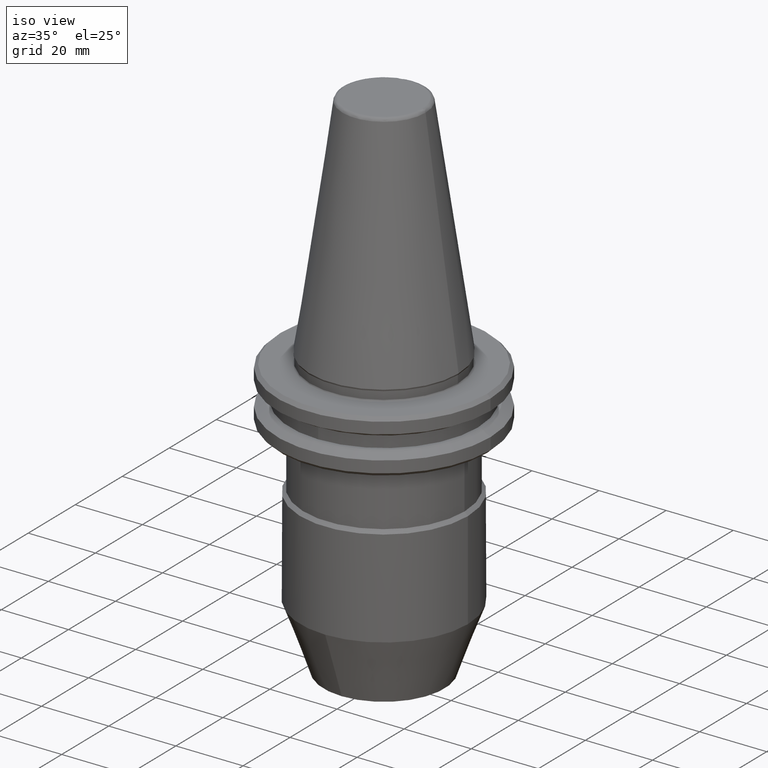
[diagram: clean part render]
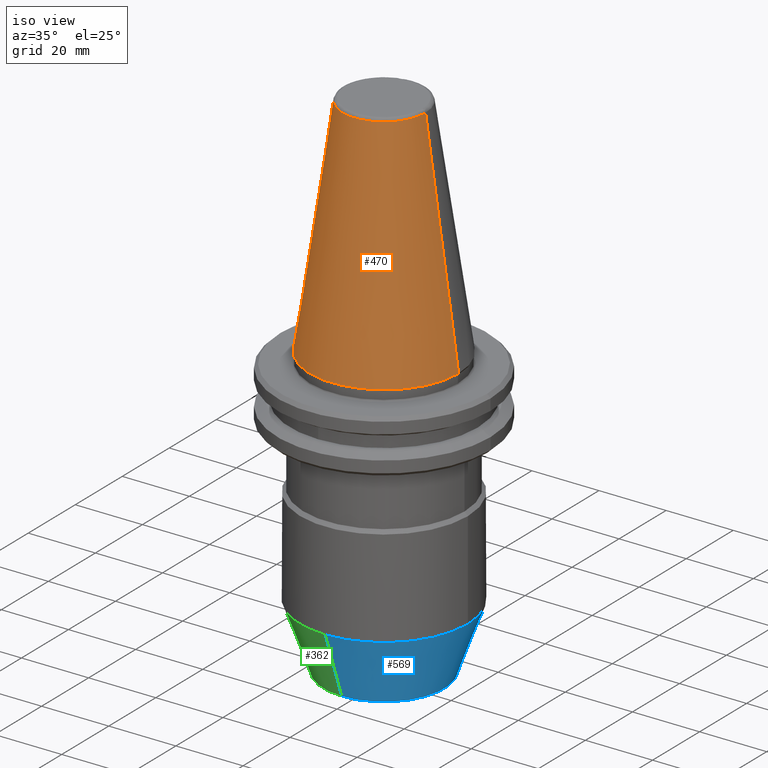
[diagram: same view with three faces highlighted in distinct colors, each labeled with its STEP entity id]
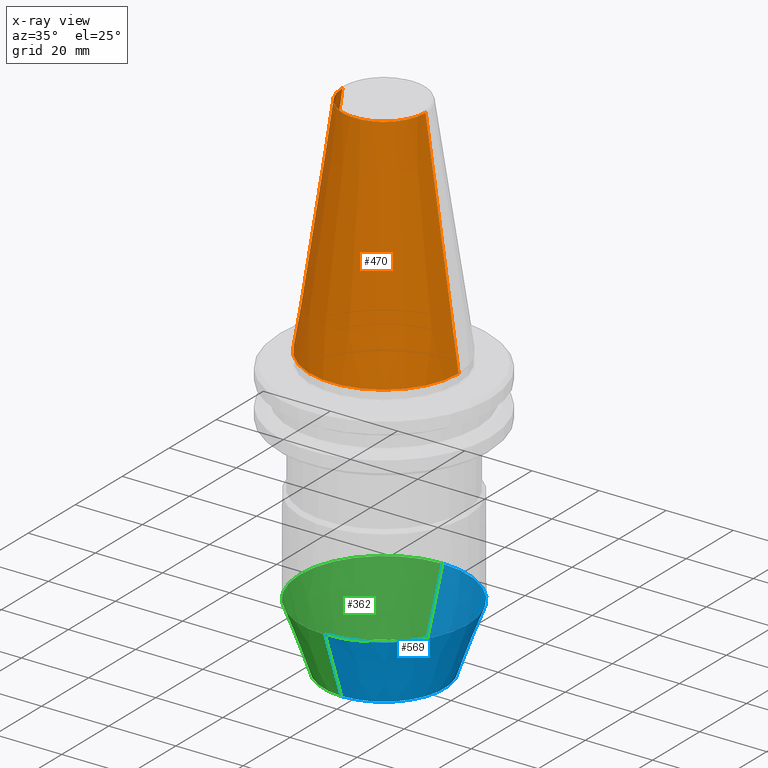
[diagram: x-ray of the same camera — body ghosted, the three highlighted faces saturated]
A machine part, iso view with three faces highlighted in distinct colors.
The next image is the same camera in x-ray (body ghosted, the three faces saturated) — at least one of them is partly hidden behind the body in this view.
Their STEP definitions:

[orange] entity #470 — the highlighted conical surface has half-angle 8.297 deg.
#9 = DIRECTION ( 'NONE',  ( -1.000000000000000000, 0.0000000000000000000, 0.0000000000000000000 ) ) ;
#33 = DIRECTION ( 'NONE',  ( 0.0000000000000000000, 0.0000000000000000000, -1.000000000000000000 ) ) ;
#52 = EDGE_CURVE ( 'NONE', #948, #1137, #634, .T. ) ;
#132 = CARTESIAN_POINT ( 'NONE',  ( 22.22499999999999800, 0.0000000000000000000, 0.0000000000000000000 ) ) ;
#157 = VECTOR ( 'NONE', #270, 1000.000000000000100 ) ;
#172 = CARTESIAN_POINT ( 'NONE',  ( -22.22499999999999400, 0.0000000000000000000, 0.0000000000000000000 ) ) ;
#239 = CARTESIAN_POINT ( 'NONE',  ( 0.0000000000000000000, 0.0000000000000000000, 0.0000000000000000000 ) ) ;
#242 = ORIENTED_EDGE ( 'NONE', *, *, #1311, .T. ) ;
#254 = DIRECTION ( 'NONE',  ( 0.0000000000000000000, 0.0000000000000000000, -1.000000000000000000 ) ) ;
#255 = CIRCLE ( 'NONE', #484, 22.22499999999999400 ) ;
#270 = DIRECTION ( 'NONE',  ( -0.1443082272694599400, 0.0000000000000000000, -0.9895327864918603800 ) ) ;
#279 = CARTESIAN_POINT ( 'NONE',  ( 12.37469537590452100, -2.855354478374084000E-009, 67.54430822699950500 ) ) ;
#320 = VERTEX_POINT ( 'NONE', #132 ) ;
#395 = DIRECTION ( 'NONE',  ( -0.0000000000000000000, -0.0000000000000000000, 1.000000000000000000 ) ) ;
#445 = CONICAL_SURFACE ( 'NONE', #775, 22.22499999999999400, 0.1448138465495947800 ) ;
#449 = EDGE_LOOP ( 'NONE', ( #1054, #545, #1231, #242 ) ) ;
#470 = ADVANCED_FACE ( 'NONE', ( #830 ), #445, .T. ) ;
#480 = LINE ( 'NONE', #1237, #1170 ) ;
#484 = AXIS2_PLACEMENT_3D ( 'NONE', #999, #395, #1095 ) ;
#496 = CARTESIAN_POINT ( 'NONE',  ( 0.0000000000000000000, 0.0000000000000000000, 67.54430822701309000 ) ) ;
#528 = EDGE_CURVE ( 'NONE', #948, #320, #480, .T. ) ;
#545 = ORIENTED_EDGE ( 'NONE', *, *, #52, .T. ) ;
#634 = CIRCLE ( 'NONE', #1164, 12.37469537599809200 ) ;
#677 = VERTEX_POINT ( 'NONE', #827 ) ;
#725 = DIRECTION ( 'NONE',  ( 0.1443082272694599400, 1.767266086161729200E-017, -0.9895327864918603800 ) ) ;
#775 = AXIS2_PLACEMENT_3D ( 'NONE', #239, #33, #9 ) ;
#806 = CARTESIAN_POINT ( 'NONE',  ( -12.37469537590595100, -5.555843992514513000E-010, 67.54430822698967100 ) ) ;
#827 = CARTESIAN_POINT ( 'NONE',  ( -22.22499999999999800, 2.721777511104992500E-015, 0.0000000000000000000 ) ) ;
#830 = FACE_OUTER_BOUND ( 'NONE', #449, .T. ) ;
#948 = VERTEX_POINT ( 'NONE', #279 ) ;
#959 = DIRECTION ( 'NONE',  ( -1.000000000000000000, 0.0000000000000000000, 0.0000000000000000000 ) ) ;
#999 = CARTESIAN_POINT ( 'NONE',  ( 0.0000000000000000000, 0.0000000000000000000, 0.0000000000000000000 ) ) ;
#1013 = EDGE_CURVE ( 'NONE', #1137, #677, #1211, .T. ) ;
#1054 = ORIENTED_EDGE ( 'NONE', *, *, #528, .F. ) ;
#1095 = DIRECTION ( 'NONE',  ( -1.000000000000000000, 0.0000000000000000000, 0.0000000000000000000 ) ) ;
#1137 = VERTEX_POINT ( 'NONE', #806 ) ;
#1164 = AXIS2_PLACEMENT_3D ( 'NONE', #496, #254, #959 ) ;
#1170 = VECTOR ( 'NONE', #725, 1000.000000000000100 ) ;
#1211 = LINE ( 'NONE', #172, #157 ) ;
#1231 = ORIENTED_EDGE ( 'NONE', *, *, #1013, .T. ) ;
#1237 = CARTESIAN_POINT ( 'NONE',  ( 22.22499999999999400, 2.721777511104992100E-015, 0.0000000000000000000 ) ) ;
#1311 = EDGE_CURVE ( 'NONE', #677, #320, #255, .T. ) ;

[blue] entity #569 — the highlighted conical surface has half-angle 20 deg.
#65 = LINE ( 'NONE', #275, #667 ) ;
#83 = DIRECTION ( 'NONE',  ( 1.000000000000000000, 0.0000000000000000000, 0.0000000000000000000 ) ) ;
#100 = CARTESIAN_POINT ( 'NONE',  ( 4.009147065138294200E-046, -25.00000000000001400, -66.76765806400001700 ) ) ;
#111 = AXIS2_PLACEMENT_3D ( 'NONE', #1116, #1235, #413 ) ;
#134 = CARTESIAN_POINT ( 'NONE',  ( -3.704014323523673200E-031, -18.00000000000001100, -86.00000000000000000 ) ) ;
#175 = AXIS2_PLACEMENT_3D ( 'NONE', #217, #919, #311 ) ;
#217 = CARTESIAN_POINT ( 'NONE',  ( 0.0000000000000000000, 0.0000000000000000000, -66.76765806400001700 ) ) ;
#275 = CARTESIAN_POINT ( 'NONE',  ( 1.336382355046098000E-046, -25.00000000000001100, -66.76765806400003100 ) ) ;
#311 = DIRECTION ( 'NONE',  ( 1.000000000000000000, 0.0000000000000000000, 0.0000000000000000000 ) ) ;
#317 = ORIENTED_EDGE ( 'NONE', *, *, #562, .F. ) ;
#318 = ORIENTED_EDGE ( 'NONE', *, *, #1236, .T. ) ;
#331 = ORIENTED_EDGE ( 'NONE', *, *, #689, .F. ) ;
#341 = CARTESIAN_POINT ( 'NONE',  ( 2.632990618166810000E-015, 18.00000000000001100, -86.00000000000000000 ) ) ;
#392 = CARTESIAN_POINT ( 'NONE',  ( 3.061616997868383400E-015, 24.99999999999999600, -66.76765806400000300 ) ) ;
#403 = CARTESIAN_POINT ( 'NONE',  ( 25.00000000000000000, 0.0000000000000000000, -66.76765806400001700 ) ) ;
#405 = DIRECTION ( 'NONE',  ( 1.925929944387235600E-032, -2.775557561562891400E-016, 1.000000000000000000 ) ) ;
#413 = DIRECTION ( 'NONE',  ( 0.0000000000000000000, -1.000000000000000000, -5.551115123125781700E-016 ) ) ;
#431 = LINE ( 'NONE', #392, #749 ) ;
#510 = CARTESIAN_POINT ( 'NONE',  ( 3.061616997868382600E-015, 24.99999999999999300, -66.76765806400001700 ) ) ;
#516 = VERTEX_POINT ( 'NONE', #510 ) ;
#537 = AXIS2_PLACEMENT_3D ( 'NONE', #1011, #405, #1110 ) ;
#562 = EDGE_CURVE ( 'NONE', #648, #516, #1112, .T. ) ;
#569 = ADVANCED_FACE ( 'NONE', ( #608 ), #928, .T. ) ;
#608 = FACE_OUTER_BOUND ( 'NONE', #934, .T. ) ;
#621 = ORIENTED_EDGE ( 'NONE', *, *, #798, .T. ) ;
#648 = VERTEX_POINT ( 'NONE', #403 ) ;
#667 = VECTOR ( 'NONE', #1072, 1000.000000000000000 ) ;
#688 = DIRECTION ( 'NONE',  ( 0.0000000000000000000, 0.0000000000000000000, 1.000000000000000000 ) ) ;
#689 = EDGE_CURVE ( 'NONE', #1102, #648, #962, .T. ) ;
#749 = VECTOR ( 'NONE', #996, 1000.000000000000000 ) ;
#760 = VERTEX_POINT ( 'NONE', #134 ) ;
#798 = EDGE_CURVE ( 'NONE', #1053, #516, #431, .T. ) ;
#919 = DIRECTION ( 'NONE',  ( 0.0000000000000000000, 0.0000000000000000000, 1.000000000000000000 ) ) ;
#928 = CONICAL_SURFACE ( 'NONE', #111, 25.00000000000000400, 0.3490658504019132900 ) ;
#934 = EDGE_LOOP ( 'NONE', ( #318, #621, #317, #331, #971 ) ) ;
#962 = CIRCLE ( 'NONE', #1259, 25.00000000000000000 ) ;
#971 = ORIENTED_EDGE ( 'NONE', *, *, #1046, .F. ) ;
#996 = DIRECTION ( 'NONE',  ( 4.188538737712063400E-017, 0.3420201433285320900, 0.9396926207848662600 ) ) ;
#1011 = CARTESIAN_POINT ( 'NONE',  ( -3.704014323523673200E-031, -1.600846695204444900E-015, -86.00000000000000000 ) ) ;
#1046 = EDGE_CURVE ( 'NONE', #760, #1102, #65, .T. ) ;
#1053 = VERTEX_POINT ( 'NONE', #341 ) ;
#1072 = DIRECTION ( 'NONE',  ( 1.809782156889293000E-032, -0.3420201433285326400, 0.9396926207848660400 ) ) ;
#1102 = VERTEX_POINT ( 'NONE', #100 ) ;
#1110 = DIRECTION ( 'NONE',  ( 0.0000000000000000000, -1.000000000000000000, 0.0000000000000000000 ) ) ;
#1112 = CIRCLE ( 'NONE', #175, 25.00000000000000000 ) ;
#1116 = CARTESIAN_POINT ( 'NONE',  ( 1.336382355046098000E-046, -6.938893903907230000E-015, -66.76765806400001700 ) ) ;
#1159 = CIRCLE ( 'NONE', #537, 18.00000000000001100 ) ;
#1235 = DIRECTION ( 'NONE',  ( 1.925929944387235600E-032, -2.775557561562891400E-016, 1.000000000000000000 ) ) ;
#1236 = EDGE_CURVE ( 'NONE', #760, #1053, #1159, .T. ) ;
#1259 = AXIS2_PLACEMENT_3D ( 'NONE', #1296, #688, #83 ) ;
#1296 = CARTESIAN_POINT ( 'NONE',  ( 0.0000000000000000000, 0.0000000000000000000, -66.76765806400001700 ) ) ;

[green] entity #362 — the highlighted conical surface has half-angle 20 deg.
#12 = AXIS2_PLACEMENT_3D ( 'NONE', #1056, #231, #935 ) ;
#65 = LINE ( 'NONE', #275, #667 ) ;
#87 = EDGE_CURVE ( 'NONE', #250, #1102, #144, .T. ) ;
#100 = CARTESIAN_POINT ( 'NONE',  ( 4.009147065138294200E-046, -25.00000000000001400, -66.76765806400001700 ) ) ;
#120 = DIRECTION ( 'NONE',  ( 0.0000000000000000000, -1.000000000000000000, -5.551115123125781700E-016 ) ) ;
#134 = CARTESIAN_POINT ( 'NONE',  ( -3.704014323523673200E-031, -18.00000000000001100, -86.00000000000000000 ) ) ;
#144 = CIRCLE ( 'NONE', #12, 25.00000000000000000 ) ;
#210 = ORIENTED_EDGE ( 'NONE', *, *, #1046, .T. ) ;
#227 = AXIS2_PLACEMENT_3D ( 'NONE', #1108, #499, #1221 ) ;
#228 = ORIENTED_EDGE ( 'NONE', *, *, #798, .F. ) ;
#231 = DIRECTION ( 'NONE',  ( 0.0000000000000000000, 0.0000000000000000000, 1.000000000000000000 ) ) ;
#250 = VERTEX_POINT ( 'NONE', #984 ) ;
#265 = EDGE_LOOP ( 'NONE', ( #228, #734, #210, #340, #660 ) ) ;
#275 = CARTESIAN_POINT ( 'NONE',  ( 1.336382355046098000E-046, -25.00000000000001100, -66.76765806400003100 ) ) ;
#340 = ORIENTED_EDGE ( 'NONE', *, *, #87, .F. ) ;
#341 = CARTESIAN_POINT ( 'NONE',  ( 2.632990618166810000E-015, 18.00000000000001100, -86.00000000000000000 ) ) ;
#362 = ADVANCED_FACE ( 'NONE', ( #630 ), #552, .T. ) ;
#390 = AXIS2_PLACEMENT_3D ( 'NONE', #727, #623, #120 ) ;
#392 = CARTESIAN_POINT ( 'NONE',  ( 3.061616997868383400E-015, 24.99999999999999600, -66.76765806400000300 ) ) ;
#431 = LINE ( 'NONE', #392, #749 ) ;
#474 = CARTESIAN_POINT ( 'NONE',  ( 0.0000000000000000000, 0.0000000000000000000, -66.76765806400001700 ) ) ;
#499 = DIRECTION ( 'NONE',  ( 1.925929944387235600E-032, -2.775557561562891400E-016, 1.000000000000000000 ) ) ;
#510 = CARTESIAN_POINT ( 'NONE',  ( 3.061616997868382600E-015, 24.99999999999999300, -66.76765806400001700 ) ) ;
#516 = VERTEX_POINT ( 'NONE', #510 ) ;
#552 = CONICAL_SURFACE ( 'NONE', #390, 25.00000000000000400, 0.3490658504019132900 ) ;
#583 = EDGE_CURVE ( 'NONE', #1053, #760, #641, .T. ) ;
#586 = DIRECTION ( 'NONE',  ( 1.000000000000000000, 0.0000000000000000000, 0.0000000000000000000 ) ) ;
#623 = DIRECTION ( 'NONE',  ( 1.925929944387235600E-032, -2.775557561562891400E-016, 1.000000000000000000 ) ) ;
#630 = FACE_OUTER_BOUND ( 'NONE', #265, .T. ) ;
#641 = CIRCLE ( 'NONE', #227, 18.00000000000001100 ) ;
#658 = AXIS2_PLACEMENT_3D ( 'NONE', #474, #1195, #586 ) ;
#660 = ORIENTED_EDGE ( 'NONE', *, *, #951, .F. ) ;
#667 = VECTOR ( 'NONE', #1072, 1000.000000000000000 ) ;
#727 = CARTESIAN_POINT ( 'NONE',  ( 1.336382355046098000E-046, -6.938893903907230000E-015, -66.76765806400001700 ) ) ;
#734 = ORIENTED_EDGE ( 'NONE', *, *, #583, .T. ) ;
#749 = VECTOR ( 'NONE', #996, 1000.000000000000000 ) ;
#760 = VERTEX_POINT ( 'NONE', #134 ) ;
#798 = EDGE_CURVE ( 'NONE', #1053, #516, #431, .T. ) ;
#935 = DIRECTION ( 'NONE',  ( 1.000000000000000000, 0.0000000000000000000, 0.0000000000000000000 ) ) ;
#951 = EDGE_CURVE ( 'NONE', #516, #250, #1147, .T. ) ;
#984 = CARTESIAN_POINT ( 'NONE',  ( -25.00000000000000000, 3.061616997868383000E-015, -66.76765806400001700 ) ) ;
#996 = DIRECTION ( 'NONE',  ( 4.188538737712063400E-017, 0.3420201433285320900, 0.9396926207848662600 ) ) ;
#1046 = EDGE_CURVE ( 'NONE', #760, #1102, #65, .T. ) ;
#1053 = VERTEX_POINT ( 'NONE', #341 ) ;
#1056 = CARTESIAN_POINT ( 'NONE',  ( 0.0000000000000000000, 0.0000000000000000000, -66.76765806400001700 ) ) ;
#1072 = DIRECTION ( 'NONE',  ( 1.809782156889293000E-032, -0.3420201433285326400, 0.9396926207848660400 ) ) ;
#1102 = VERTEX_POINT ( 'NONE', #100 ) ;
#1108 = CARTESIAN_POINT ( 'NONE',  ( -3.704014323523673200E-031, -1.600846695204444900E-015, -86.00000000000000000 ) ) ;
#1147 = CIRCLE ( 'NONE', #658, 25.00000000000000000 ) ;
#1195 = DIRECTION ( 'NONE',  ( 0.0000000000000000000, 0.0000000000000000000, 1.000000000000000000 ) ) ;
#1221 = DIRECTION ( 'NONE',  ( 0.0000000000000000000, -1.000000000000000000, 0.0000000000000000000 ) ) ;